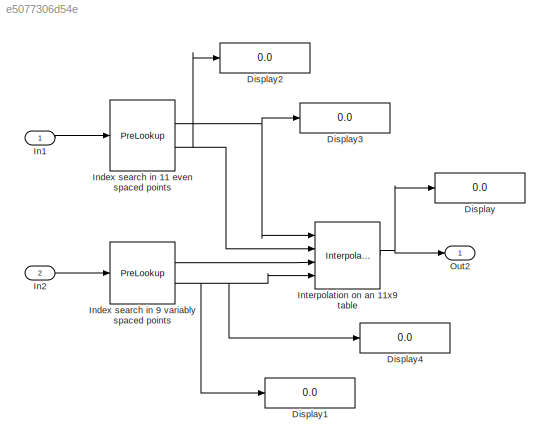
MODEL slx_e5077306d54e
KIND model
CONFIG AbsTol = auto
CONFIG EnableMultiTasking = on
CONFIG FixedStep = 0.1
CONFIG MaxStep = auto
CONFIG MinStep = auto
CONFIG RelTol = 1e-3
CONFIG SampleTimeConstraint = Unconstrained
CONFIG Solver = FixedStepAuto
CONFIG SolverName = FixedStepAuto
CONFIG StartTime = 0.0
CONFIG StopTime = 10.0
BLOCK [Display] Display
  Decimation = 1
  Ports = [1]
BLOCK [Display] Display1
  Decimation = 1
  Ports = [1]
BLOCK [Display] Display2
  Decimation = 1
  Ports = [1]
BLOCK [Display] Display3
  Decimation = 1
  Ports = [1]
BLOCK [Display] Display4
  Decimation = 1
  Ports = [1]
BLOCK [Inport] In1
  IconDisplay = Port number
  OutMax = 120
  OutMin = -10
BLOCK [Inport] In2
  IconDisplay = Port number
  OutMax = 120
  OutMin = -10
  Port = 2
BLOCK [PreLookup] Index search in 11 even spaced points
  BreakpointsData = [0:10:100]
  ExtrapMethod = Linear
  IndexSearchMethod = Evenly spaced points
  InputPortMap = u0
  Ports = [1, 2]
BLOCK [PreLookup] Index search in 9 variably spaced points
  BeginIndexSearchUsingPreviousIndexResult = on
  BreakpointsData = [ 0.5, 1, 3, 5, 15, 45, 95, 96, 97 ]
  ExtrapMethod = Linear
  InputPortMap = u0
  Ports = [1, 2]
BLOCK [Interpolation_n-D] Interpolation on an 11x9 table
  ExtrapMethod = Clip
  InputPortMap = u0,u1,u2,u3
  InterpMethod = Nearest
  Ports = [4, 1]
  Table = reshape([1:99], [11,9])
BLOCK [Outport] Out2
  IconDisplay = Port number
LINE In1:1 -> Index search in 11 even spaced points:1
LINE In2:1 -> Index search in 9 variably spaced points:1
NET Index search in 11 even spaced points:1 -> Display3:1, Interpolation on an 11x9 table:1
NET Index search in 11 even spaced points:2 -> Display2:1, Interpolation on an 11x9 table:2
LINE Index search in 9 variably spaced points:1 -> Interpolation on an 11x9 table:3
NET Index search in 9 variably spaced points:2 -> Display1:1, Display4:1, Interpolation on an 11x9 table:4
NET Interpolation on an 11x9 table:1 -> Display:1, Out2:1
note: NET lines group one-source signal fan-out (src -> all destinations, sorted); 1:1 wires keep LINE
